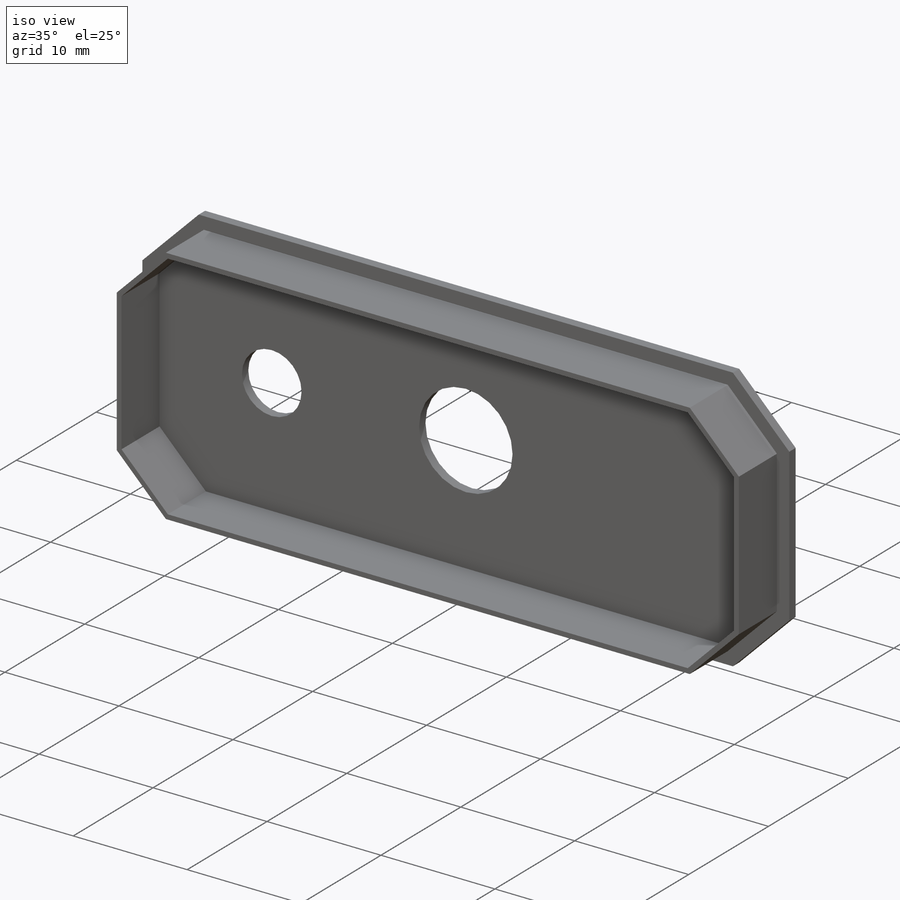
[diagram: iso view]
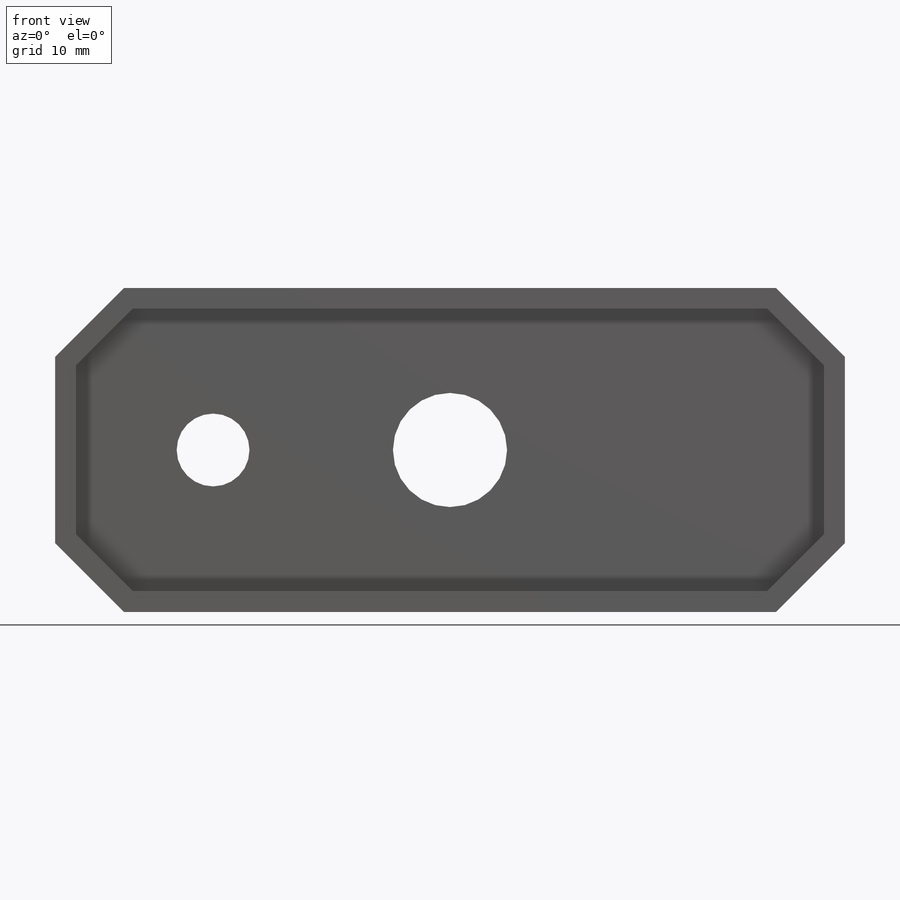
[diagram: front view]
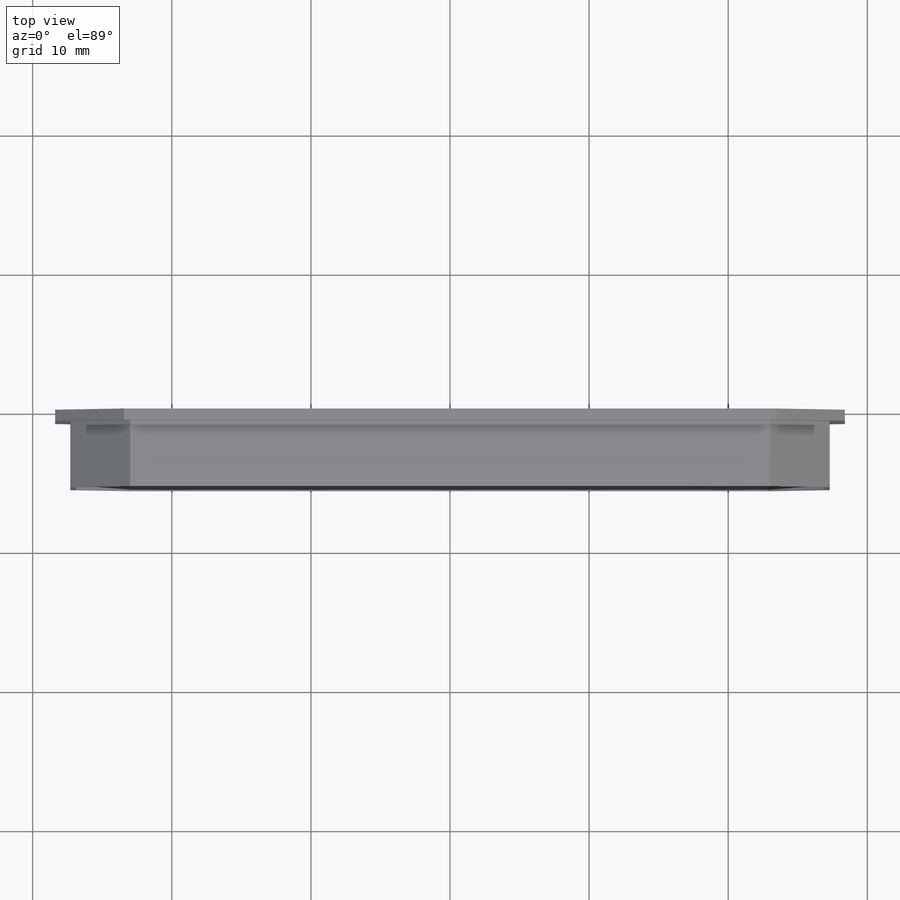
[diagram: top view]
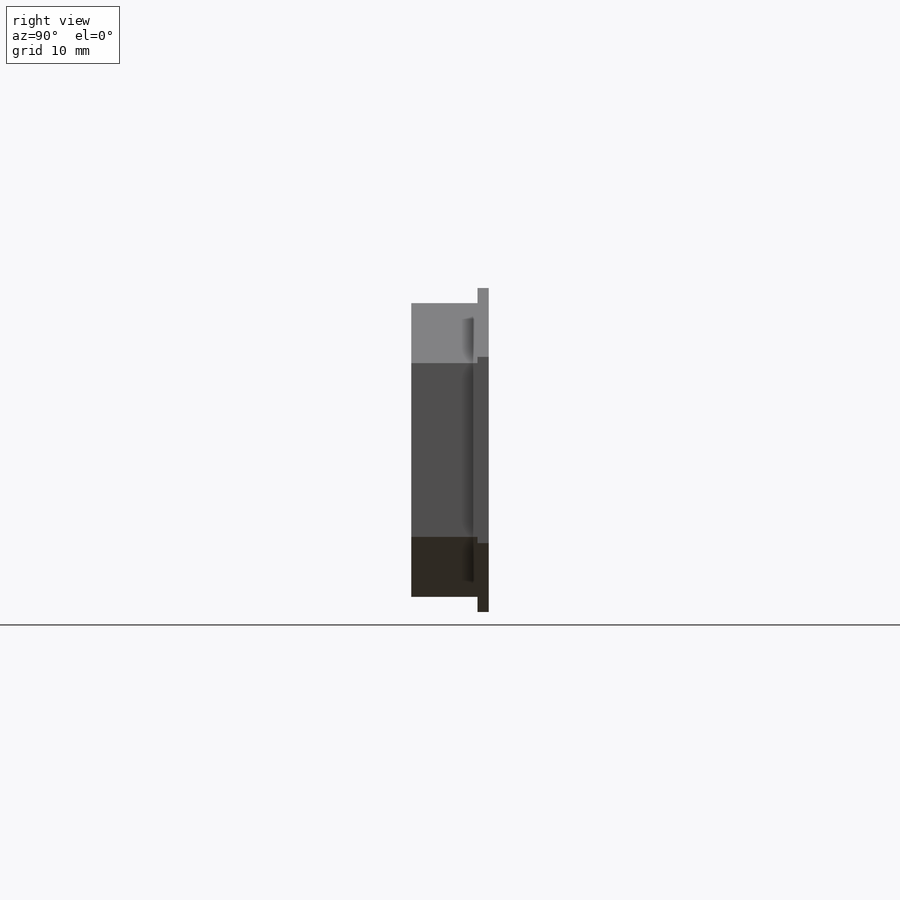
[diagram: right view]
SOLIDWORKS PART (.sldprt)
format: sldprt  version: not decoded by parser v0  size: 223,744 bytes
history: native  units: mm
features: sketch x5, cut_extrude x3, extrude x2, material x1 (+12 scaffold rows collapsed)
feature tree (23):
  scaffold x12  (default folders/planes/origin — collapsed)
  material  "Material <not specified>"
  sketch  "Sketch1"  dims[D1=56.769mm D2=23.2918mm]
  extrude  "Boss-Extrude1"  Depth=0.8mm
  sketch  "Sketch2"  dims[c1.D1=7.0mm c1.D2=7.0mm c1.D3=7.0mm c1.D4=7.0mm c1.D5=~6.032147mm c2.D5=45.0deg c2.D6=7.0mm c3.D6=45.0deg c3.D7=7.0mm c4.D7=45.0deg c4.D8=~5.128115mm c5.D8=45.0deg]
  cut_extrude  "Cut-Extrude1"  [1 undecoded]
  sketch  "Sketch3"  dims[D1=1.5048mm D2=0.42mm]
  extrude  "Boss-Extrude2"  Depth=4.7625mm
  sketch  "Sketch4"  dims[D1=5.2324mm D2=11.3538mm]
  cut_extrude  "Cut-Extrude2"  Depth=2.54mm
  sketch  "Sketch5"  dims[D1=8.2042mm]
  cut_extrude  "Cut-Extrude3"  Depth=2.54mm
decode coverage: 9 of 10 modeling features carry decoded parameters
note: ~ marks probable driven/reference dimensions
note: 1 parameter value undecoded
note: suppression state not decoded; provenance and decode notes live in map.json
